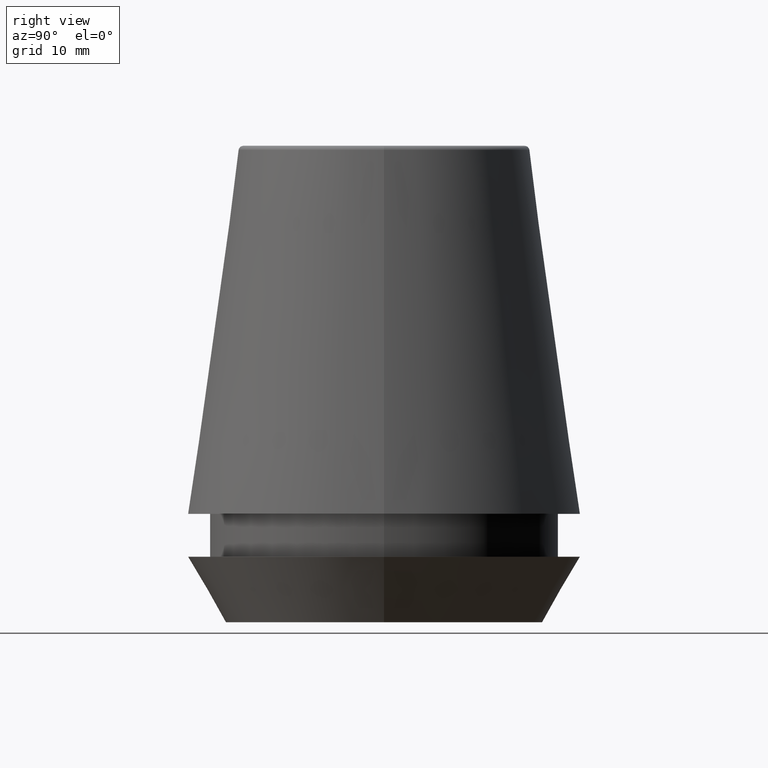
[diagram: clean part render]
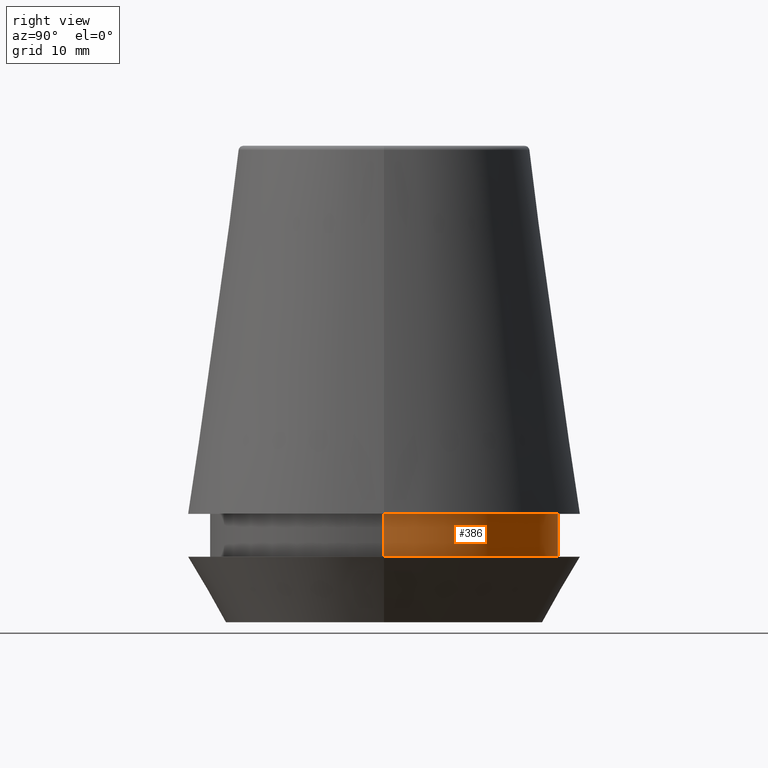
[diagram: same view with one face highlighted and labeled with its STEP entity id]
A machine part, right view. The second image highlights one B-rep face of the part: STEP entity #386.
In plain terms, the highlighted cylindrical surface (partial cylindrical patch) has radius 14.6 mm, axis along (-0, -0, 1).
Its self-contained STEP definition (entity closure, byte-faithful):
#3 = AXIS2_PLACEMENT_3D ( 'NONE', #117, #236, #336 ) ;
#18 = AXIS2_PLACEMENT_3D ( 'NONE', #99, #285, #249 ) ;
#21 = EDGE_CURVE ( 'NONE', #70, #123, #358, .T. ) ;
#25 = ORIENTED_EDGE ( 'NONE', *, *, #304, .T. ) ;
#58 = DIRECTION ( 'NONE',  ( 1.000000000000000000, 0.0000000000000000000, 0.0000000000000000000 ) ) ;
#70 = VERTEX_POINT ( 'NONE', #365 ) ;
#77 = CARTESIAN_POINT ( 'NONE',  ( 14.60000000000000000, 0.0000000000000000000, 9.099999999999997900 ) ) ;
#86 = EDGE_LOOP ( 'NONE', ( #283, #25, #339, #384 ) ) ;
#99 = CARTESIAN_POINT ( 'NONE',  ( 0.0000000000000000000, 0.0000000000000000000, 5.500000000000005300 ) ) ;
#100 = LINE ( 'NONE', #364, #212 ) ;
#108 = DIRECTION ( 'NONE',  ( -0.0000000000000000000, -0.0000000000000000000, 1.000000000000000000 ) ) ;
#117 = CARTESIAN_POINT ( 'NONE',  ( 0.0000000000000000000, 0.0000000000000000000, 9.099999999999997900 ) ) ;
#119 = LINE ( 'NONE', #199, #319 ) ;
#123 = VERTEX_POINT ( 'NONE', #335 ) ;
#158 = EDGE_CURVE ( 'NONE', #70, #288, #119, .T. ) ;
#199 = CARTESIAN_POINT ( 'NONE',  ( 14.60000000000000000, 0.0000000000000000000, 101.8074564848000400 ) ) ;
#202 = EDGE_CURVE ( 'NONE', #288, #223, #371, .T. ) ;
#212 = VECTOR ( 'NONE', #108, 1000.000000000000000 ) ;
#223 = VERTEX_POINT ( 'NONE', #382 ) ;
#226 = DIRECTION ( 'NONE',  ( -0.0000000000000000000, -0.0000000000000000000, 1.000000000000000000 ) ) ;
#229 = CYLINDRICAL_SURFACE ( 'NONE', #301, 14.60000000000000000 ) ;
#236 = DIRECTION ( 'NONE',  ( -0.0000000000000000000, -0.0000000000000000000, 1.000000000000000000 ) ) ;
#249 = DIRECTION ( 'NONE',  ( 1.000000000000000000, 0.0000000000000000000, 0.0000000000000000000 ) ) ;
#283 = ORIENTED_EDGE ( 'NONE', *, *, #21, .T. ) ;
#285 = DIRECTION ( 'NONE',  ( -0.0000000000000000000, -0.0000000000000000000, 1.000000000000000000 ) ) ;
#288 = VERTEX_POINT ( 'NONE', #77 ) ;
#299 = DIRECTION ( 'NONE',  ( -0.0000000000000000000, -0.0000000000000000000, 1.000000000000000000 ) ) ;
#301 = AXIS2_PLACEMENT_3D ( 'NONE', #309, #299, #58 ) ;
#304 = EDGE_CURVE ( 'NONE', #123, #223, #100, .T. ) ;
#309 = CARTESIAN_POINT ( 'NONE',  ( 0.0000000000000000000, 0.0000000000000000000, 101.8074564848000400 ) ) ;
#319 = VECTOR ( 'NONE', #226, 1000.000000000000000 ) ;
#335 = CARTESIAN_POINT ( 'NONE',  ( -14.60000000000000000, 1.787984326755135800E-015, 5.500000000000005300 ) ) ;
#336 = DIRECTION ( 'NONE',  ( 1.000000000000000000, 0.0000000000000000000, 0.0000000000000000000 ) ) ;
#339 = ORIENTED_EDGE ( 'NONE', *, *, #202, .F. ) ;
#358 = CIRCLE ( 'NONE', #18, 14.60000000000000000 ) ;
#364 = CARTESIAN_POINT ( 'NONE',  ( -14.60000000000000000, 1.787984326755135800E-015, 101.8074564848000400 ) ) ;
#365 = CARTESIAN_POINT ( 'NONE',  ( 14.60000000000000000, 0.0000000000000000000, 5.500000000000005300 ) ) ;
#368 = FACE_OUTER_BOUND ( 'NONE', #86, .T. ) ;
#371 = CIRCLE ( 'NONE', #3, 14.60000000000000000 ) ;
#382 = CARTESIAN_POINT ( 'NONE',  ( -14.60000000000000000, 1.787984326755135800E-015, 9.099999999999997900 ) ) ;
#384 = ORIENTED_EDGE ( 'NONE', *, *, #158, .F. ) ;
#386 = ADVANCED_FACE ( 'NONE', ( #368 ), #229, .T. ) ;